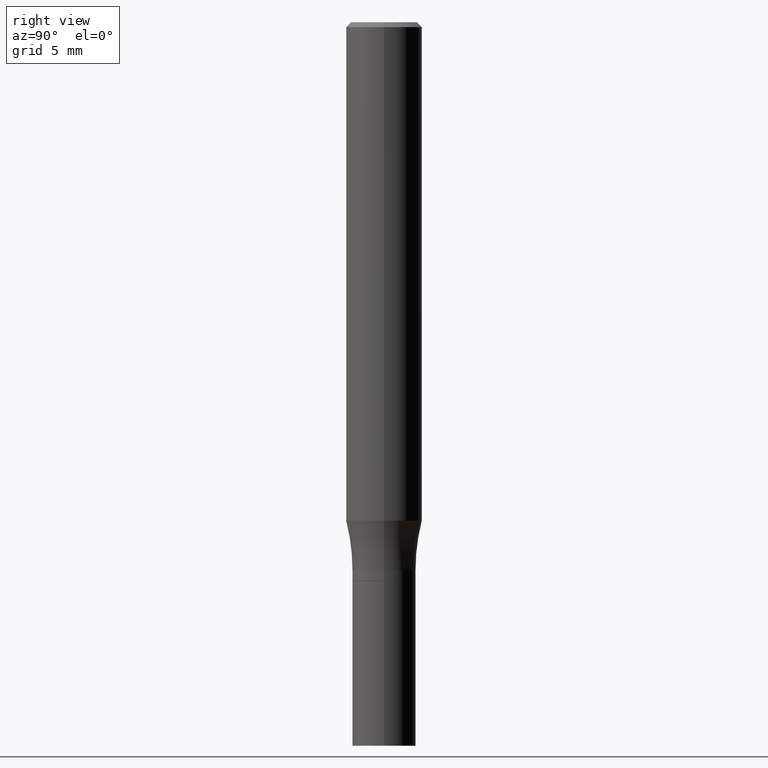
[diagram: clean part render]
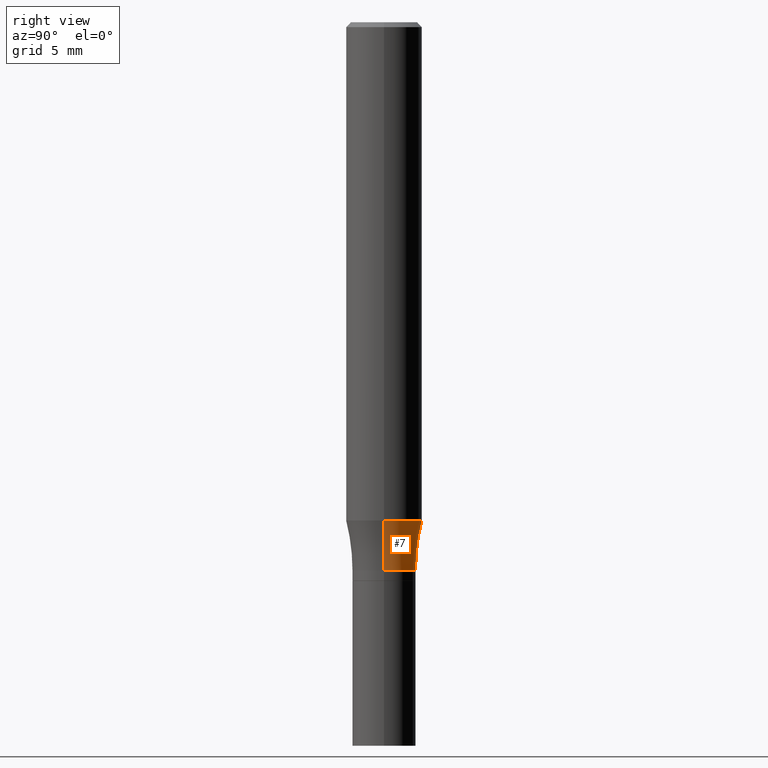
[diagram: same view with one face highlighted and labeled with its STEP entity id]
A machine part, right view. The second image highlights one B-rep face of the part: STEP entity #7.
In plain terms, the highlighted toroidal blend (fillet) surface has major radius 18.3756 mm and minor (blend) radius 15.875 mm.
Its self-contained STEP definition (entity closure, byte-faithful):
#7 = ADVANCED_FACE ( 'NONE', ( #91 ), #183, .F. ) ;
#24 = DIRECTION ( 'NONE',  ( 1.000000000000000000, -6.982962677686265133E-15, 0.000000000000000000 ) ) ;
#32 = CARTESIAN_POINT ( 'NONE',  ( 3.779747038470435747E-29, -5.396477034174070739E-15, -1.545612452267071113 ) ) ;
#37 = EDGE_LOOP ( 'NONE', ( #372, #420, #333, #157 ) ) ;
#43 = AXIS2_PLACEMENT_3D ( 'NONE', #231, #345, #455 ) ;
#75 = VERTEX_POINT ( 'NONE', #200 ) ;
#91 = FACE_OUTER_BOUND ( 'NONE', #37, .T. ) ;
#107 = CARTESIAN_POINT ( 'NONE',  ( 0.09845000000000017626, -6.626831581124290238E-15, -1.701100000000000056 ) ) ;
#114 = CARTESIAN_POINT ( 'NONE',  ( -0.7234500000000001485, -7.989374836496292640E-16, -1.701100000000000056 ) ) ;
#115 = AXIS2_PLACEMENT_3D ( 'NONE', #334, #160, #448 ) ;
#121 = VERTEX_POINT ( 'NONE', #122 ) ;
#122 = CARTESIAN_POINT ( 'NONE',  ( -0.09845000000000017626, -4.898577822695823688E-15, -1.701100000000000056 ) ) ;
#157 = ORIENTED_EDGE ( 'NONE', *, *, #184, .T. ) ;
#158 = CARTESIAN_POINT ( 'NONE',  ( 0.7234500000000001485, -1.099118325467820614E-14, -1.701100000000000056 ) ) ;
#160 = DIRECTION ( 'NONE',  ( -2.445468806185136597E-29, 3.491481338843145583E-15, 1.000000000000000000 ) ) ;
#175 = CIRCLE ( 'NONE', #391, 0.6250000000000000000 ) ;
#179 = AXIS2_PLACEMENT_3D ( 'NONE', #32, #435, #390 ) ;
#183 = TOROIDAL_SURFACE ( 'NONE', #43, 0.7234500000000001485, 0.6250000000000000000 ) ;
#184 = EDGE_CURVE ( 'NONE', #456, #121, #453, .T. ) ;
#187 = DIRECTION ( 'NONE',  ( -1.000000000000000000, 7.105427357601001859E-15, 0.000000000000000000 ) ) ;
#200 = CARTESIAN_POINT ( 'NONE',  ( -0.1181000000000000660, -4.557326063241392542E-15, -1.545612452267071113 ) ) ;
#204 = CIRCLE ( 'NONE', #229, 0.6250000000000000000 ) ;
#229 = AXIS2_PLACEMENT_3D ( 'NONE', #158, #452, #24 ) ;
#231 = CARTESIAN_POINT ( 'NONE',  ( 4.159986986201535705E-29, -5.939358905506075311E-15, -1.701100000000000056 ) ) ;
#240 = VERTEX_POINT ( 'NONE', #432 ) ;
#246 = EDGE_CURVE ( 'NONE', #240, #75, #421, .T. ) ;
#333 = ORIENTED_EDGE ( 'NONE', *, *, #437, .T. ) ;
#334 = CARTESIAN_POINT ( 'NONE',  ( 4.159986986201535705E-29, -5.939358905506075311E-15, -1.701100000000000056 ) ) ;
#345 = DIRECTION ( 'NONE',  ( -2.445468806185136597E-29, 3.491481338843145583E-15, 1.000000000000000000 ) ) ;
#361 = DIRECTION ( 'NONE',  ( 7.105427357601001859E-15, 1.000000000000000000, -3.491481338843145583E-15 ) ) ;
#372 = ORIENTED_EDGE ( 'NONE', *, *, #413, .F. ) ;
#390 = DIRECTION ( 'NONE',  ( 1.000000000000000000, -6.982962677686262766E-15, 0.000000000000000000 ) ) ;
#391 = AXIS2_PLACEMENT_3D ( 'NONE', #114, #361, #187 ) ;
#413 = EDGE_CURVE ( 'NONE', #75, #121, #175, .T. ) ;
#420 = ORIENTED_EDGE ( 'NONE', *, *, #246, .F. ) ;
#421 = CIRCLE ( 'NONE', #179, 0.1181000000000000383 ) ;
#432 = CARTESIAN_POINT ( 'NONE',  ( 0.1181000000000000660, -6.221164926408819001E-15, -1.545612452267071113 ) ) ;
#435 = DIRECTION ( 'NONE',  ( -2.445468806185136597E-29, 3.491481338843145583E-15, 1.000000000000000000 ) ) ;
#437 = EDGE_CURVE ( 'NONE', #240, #456, #204, .T. ) ;
#448 = DIRECTION ( 'NONE',  ( 1.000000000000000000, -6.982962677686272233E-15, 0.000000000000000000 ) ) ;
#452 = DIRECTION ( 'NONE',  ( -6.982962677686266711E-15, -1.000000000000000000, 3.491481338843145583E-15 ) ) ;
#453 = CIRCLE ( 'NONE', #115, 0.09845000000000017626 ) ;
#455 = DIRECTION ( 'NONE',  ( 1.000000000000000000, -6.982962677686266711E-15, 4.883557194083112901E-29 ) ) ;
#456 = VERTEX_POINT ( 'NONE', #107 ) ;